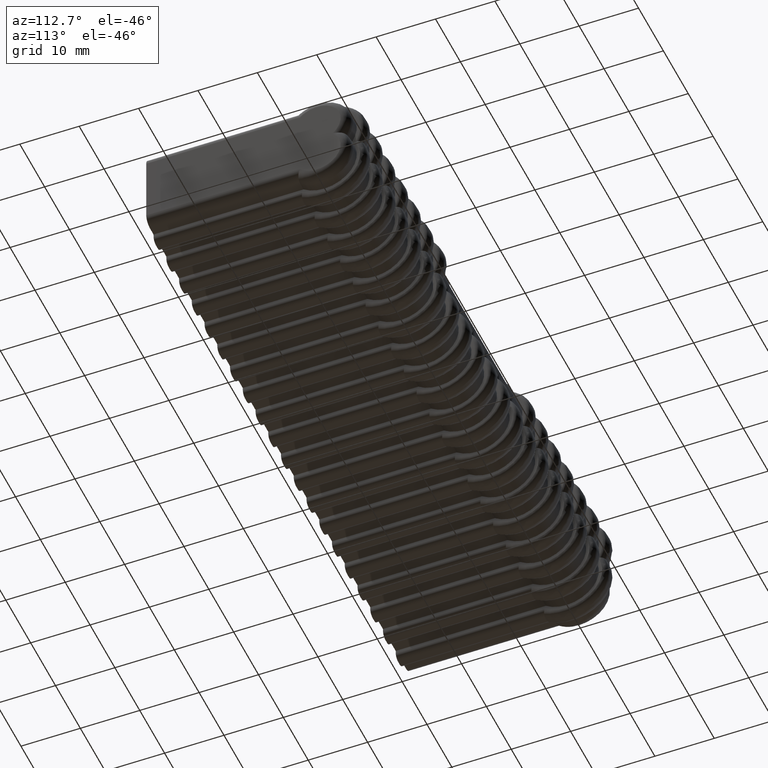
[diagram: clean part render]
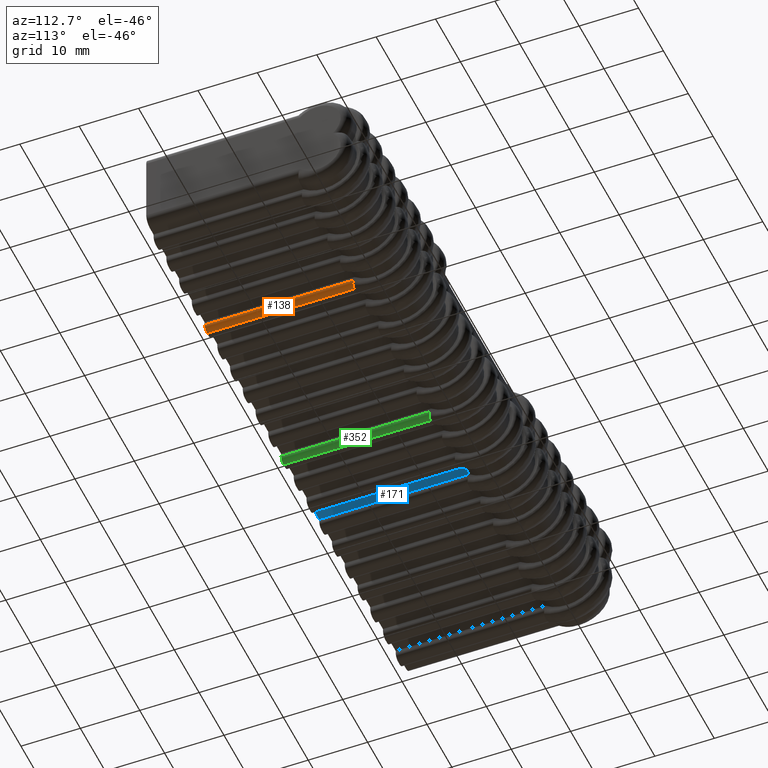
[diagram: same view with three faces highlighted in distinct colors, each labeled with its STEP entity id]
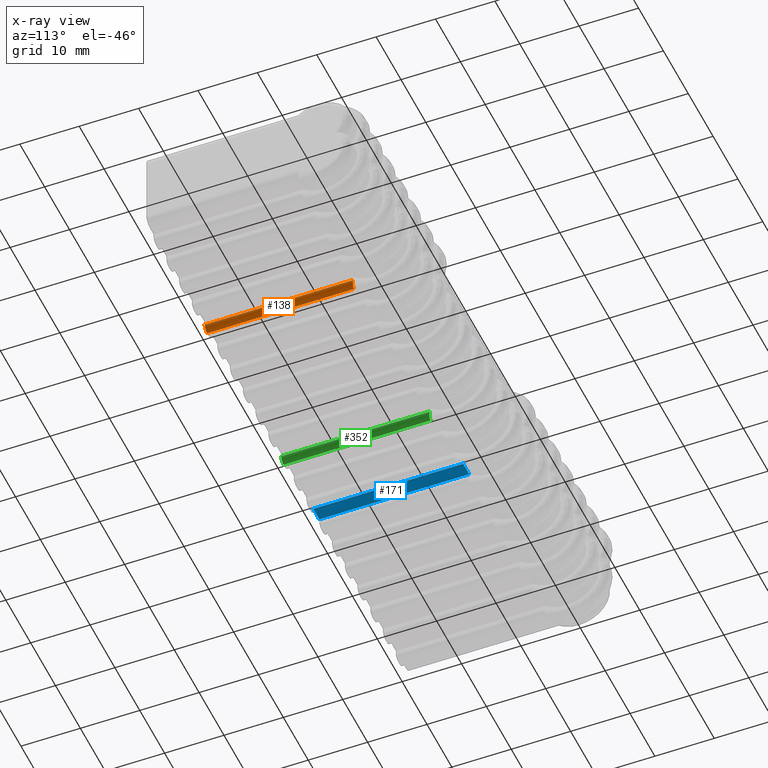
[diagram: x-ray of the same camera — body ghosted, the three highlighted faces saturated]
A machine part, auxiliary view with three faces highlighted in distinct colors.
The next image is the same camera in x-ray (body ghosted, the three faces saturated) — at least one of them is partly hidden behind the body in this view.
Their STEP definitions:

[orange] entity #138 — the highlighted cylindrical surface (edge-blend (fillet) strip) has radius 1 mm, axis along (0, 1, -0).
#138 = ADVANCED_FACE( '', ( #747 ), #748, .T. );
#747 = FACE_OUTER_BOUND( '', #1852, .T. );
#748 = CYLINDRICAL_SURFACE( '', #1853, 1.00000000000000 );
#1852 = EDGE_LOOP( '', ( #3334, #3335, #3336, #3337, #3338 ) );
#1853 = AXIS2_PLACEMENT_3D( '', #3339, #3340, #3341 );
#3334 = ORIENTED_EDGE( '', *, *, #7706, .F. );
#3335 = ORIENTED_EDGE( '', *, *, #7707, .T. );
#3336 = ORIENTED_EDGE( '', *, *, #7708, .T. );
#3337 = ORIENTED_EDGE( '', *, *, #7709, .T. );
#3338 = ORIENTED_EDGE( '', *, *, #7710, .F. );
#3339 = CARTESIAN_POINT( '', ( 28.5160354332851, 28.7300000000000, -7.74999999999999 ) );
#3340 = DIRECTION( '', ( 5.47382212626881E-048, 1.00000000000000, -1.83690953073357E-016 ) );
#3341 = DIRECTION( '', ( -1.22460635382238E-016, 1.83690953073357E-016, 1.00000000000000 ) );
#7706 = EDGE_CURVE( '', #9343, #9344, #9345, .T. );
#7707 = EDGE_CURVE( '', #9343, #9346, #9347, .T. );
#7708 = EDGE_CURVE( '', #9346, #9348, #9349, .T. );
#7709 = EDGE_CURVE( '', #9348, #9350, #9351, .T. );
#7710 = EDGE_CURVE( '', #9344, #9350, #9352, .T. );
#9343 = VERTEX_POINT( '', #12355 );
#9344 = VERTEX_POINT( '', #12356 );
#9345 = LINE( '', #12357, #12358 );
#9346 = VERTEX_POINT( '', #12359 );
#9347 = B_SPLINE_CURVE_WITH_KNOTS( '', 3, ( #12360, #12361, #12362, #12363 ), .UNSPECIFIED., .F., .F., ( 4, 4 ), ( 0.000000000000000, 5.00004884424651E-006 ), .UNSPECIFIED. );
#9348 = VERTEX_POINT( '', #12364 );
#9349 = B_SPLINE_CURVE_WITH_KNOTS( '', 3, ( #12365, #12366, #12367, #12368, #12369, #12370, #12371, #12372, #12373, #12374, #12375, #12376, #12377, #12378 ), .UNSPECIFIED., .F., .F., ( 4, 2, 2, 2, 2, 2, 4 ), ( 1.97119879776697E-007, 0.000382326565513297, 0.000764456011146818, 0.00114658545678034, 0.00133765017959710, 0.00143318254100548, 0.00152871490241385 ), .UNSPECIFIED. );
#9350 = VERTEX_POINT( '', #12379 );
#9351 = LINE( '', #12380, #12381 );
#9352 = CIRCLE( '', #12382, 1.00000000000000 );
#12355 = CARTESIAN_POINT( '', ( 28.5160354332851, 24.7680576142451, -8.74999999999999 ) );
#12356 = CARTESIAN_POINT( '', ( 28.5160354332851, -3.46944695195361E-015, -8.74999999999998 ) );
#12357 = CARTESIAN_POINT( '', ( 28.5160354332851, 28.7300000000000, -8.74999999999999 ) );
#12358 = VECTOR( '', #17756, 1000.00000000000 );
#12359 = CARTESIAN_POINT( '', ( 28.5210354332851, 24.7680393880839, -8.74998749992186 ) );
#12360 = CARTESIAN_POINT( '', ( 28.5160354332851, 24.7680576142451, -8.74999999999999 ) );
#12361 = CARTESIAN_POINT( '', ( 28.5177021162332, 24.7680576142451, -8.74999999999999 ) );
#12362 = CARTESIAN_POINT( '', ( 28.5193688154604, 24.7680515385368, -8.74999583311516 ) );
#12363 = CARTESIAN_POINT( '', ( 28.5210354332851, 24.7680393880839, -8.74998749992186 ) );
#12364 = CARTESIAN_POINT( '', ( 29.5146649680397, 24.9744503550466, -7.80233595624294 ) );
#12365 = CARTESIAN_POINT( '', ( 28.5210354332851, 24.7680393880839, -8.74998749992186 ) );
#12366 = CARTESIAN_POINT( '', ( 28.6502706555740, 24.7670972005867, -8.74934131573307 ) );
#12367 = CARTESIAN_POINT( '', ( 28.7769668455164, 24.7738997672032, -8.72373074994700 ) );
#12368 = CARTESIAN_POINT( '', ( 29.0128166028138, 24.8014183849335, -8.62718028071947 ) );
#12369 = CARTESIAN_POINT( '', ( 29.1205445157543, 24.8221578836521, -8.55635311089889 ) );
#12370 = CARTESIAN_POINT( '', ( 29.3004888082527, 24.8731686583458, -8.38266853307713 ) );
#12371 = CARTESIAN_POINT( '', ( 29.3738033681787, 24.9041955233257, -8.27869228016664 ) );
#12372 = CARTESIAN_POINT( '', ( 29.4509956326883, 24.9505084225083, -8.11009688257714 ) );
#12373 = CARTESIAN_POINT( '', ( 29.4716235511464, 24.9663554084897, -8.05144099493044 ) );
#12374 = CARTESIAN_POINT( '', ( 29.4944284185551, 24.9847834273757, -7.95916739105316 ) );
#12375 = CARTESIAN_POINT( '', ( 29.5006299180596, 24.9900981535437, -7.92779949479178 ) );
#12376 = CARTESIAN_POINT( '', ( 29.5100362235337, 24.9928484194723, -7.86402363255856 ) );
#12377 = CARTESIAN_POINT( '', ( 29.5131598647860, 24.9897605692524, -7.83105503715618 ) );
#12378 = CARTESIAN_POINT( '', ( 29.5146649680397, 24.9744503550479, -7.80233595624249 ) );
#12379 = CARTESIAN_POINT( '', ( 29.5146649680397, -3.46944695195361E-015, -7.80233595624293 ) );
#12380 = CARTESIAN_POINT( '', ( 29.5146649680397, 28.7300000000000, -7.80233595624294 ) );
#12381 = VECTOR( '', #17757, 1000.00000000000 );
#12382 = AXIS2_PLACEMENT_3D( '', #17758, #17759, #17760 );
#17756 = DIRECTION( '', ( 0.000000000000000, -1.00000000000000, 1.83690953073357E-016 ) );
#17757 = DIRECTION( '', ( 0.000000000000000, -1.00000000000000, 1.83690953073357E-016 ) );
#17758 = CARTESIAN_POINT( '', ( 28.5160354332851, -3.46944695195361E-015, -7.74999999999998 ) );
#17759 = DIRECTION( '', ( -5.47382212626881E-048, -1.00000000000000, 1.83690953073357E-016 ) );
#17760 = DIRECTION( '', ( 1.22460635382238E-016, -1.83690953073357E-016, -1.00000000000000 ) );

[blue] entity #171 — the highlighted planar face has unit normal (0, -0, -1).
#171 = ADVANCED_FACE( '', ( #813 ), #814, .T. );
#813 = FACE_OUTER_BOUND( '', #1918, .T. );
#814 = PLANE( '', #1919 );
#1918 = EDGE_LOOP( '', ( #3596, #3597, #3598, #3599, #3600 ) );
#1919 = AXIS2_PLACEMENT_3D( '', #3601, #3602, #3603 );
#3596 = ORIENTED_EDGE( '', *, *, #7860, .F. );
#3597 = ORIENTED_EDGE( '', *, *, #7861, .T. );
#3598 = ORIENTED_EDGE( '', *, *, #7862, .F. );
#3599 = ORIENTED_EDGE( '', *, *, #7863, .T. );
#3600 = ORIENTED_EDGE( '', *, *, #7864, .T. );
#3601 = CARTESIAN_POINT( '', ( 53.0000000000000, -3.46944695195361E-015, -7.24999999999998 ) );
#3602 = DIRECTION( '', ( 1.22460635382238E-016, -1.83690953073357E-016, -1.00000000000000 ) );
#3603 = DIRECTION( '', ( 1.00000000000000, 2.24949108273321E-032, 1.22460635382238E-016 ) );
#7860 = EDGE_CURVE( '', #9632, #9633, #9634, .T. );
#7861 = EDGE_CURVE( '', #9632, #9635, #9636, .T. );
#7862 = EDGE_CURVE( '', #9637, #9635, #9638, .T. );
#7863 = EDGE_CURVE( '', #9637, #9639, #9640, .T. );
#7864 = EDGE_CURVE( '', #9639, #9633, #9641, .T. );
#9632 = VERTEX_POINT( '', #13023 );
#9633 = VERTEX_POINT( '', #13024 );
#9634 = LINE( '', #13025, #13026 );
#9635 = VERTEX_POINT( '', #13027 );
#9636 = B_SPLINE_CURVE_WITH_KNOTS( '', 3, ( #13028, #13029, #13030, #13031 ), .UNSPECIFIED., .F., .F., ( 4, 4 ), ( 0.00330262157065524, 0.00345230614790573 ), .UNSPECIFIED. );
#9637 = VERTEX_POINT( '', #13032 );
#9638 = LINE( '', #13033, #13034 );
#9639 = VERTEX_POINT( '', #13035 );
#9640 = LINE( '', #13036, #13037 );
#9641 = LINE( '', #13038, #13039 );
#13023 = CARTESIAN_POINT( '', ( -16.6263883310754, 25.1144786972615, -7.25000000000000 ) );
#13024 = CARTESIAN_POINT( '', ( -16.6263883310754, -3.46944695195361E-015, -7.24999999999999 ) );
#13025 = CARTESIAN_POINT( '', ( -16.6263883310754, 28.7300000000000, -7.25000000000000 ) );
#13026 = VECTOR( '', #17960, 1000.00000000000 );
#13027 = CARTESIAN_POINT( '', ( -16.6213883310754, 25.2640810616776, -7.25000000000001 ) );
#13028 = CARTESIAN_POINT( '', ( -16.6263883310754, 25.1144786972615, -7.25000000000000 ) );
#13029 = CARTESIAN_POINT( '', ( -16.6247009513213, 25.1643456992722, -7.25000000000000 ) );
#13030 = CARTESIAN_POINT( '', ( -16.6230339249693, 25.2142131462148, -7.25000000000000 ) );
#13031 = CARTESIAN_POINT( '', ( -16.6213883310754, 25.2640810616776, -7.25000000000000 ) );
#13032 = CARTESIAN_POINT( '', ( -14.1536116689246, 25.2640810616776, -7.24999999999999 ) );
#13033 = CARTESIAN_POINT( '', ( 100.000000000000, 25.2640810616776, -7.24999999999999 ) );
#13034 = VECTOR( '', #17961, 1000.00000000000 );
#13035 = CARTESIAN_POINT( '', ( -14.1536116689246, -3.46944695195361E-015, -7.24999999999998 ) );
#13036 = CARTESIAN_POINT( '', ( -14.1536116689246, 28.7300000000000, -7.24999999999999 ) );
#13037 = VECTOR( '', #17962, 1000.00000000000 );
#13038 = CARTESIAN_POINT( '', ( 53.0000000000000, -3.46944695195361E-015, -7.24999999999998 ) );
#13039 = VECTOR( '', #17963, 1000.00000000000 );
#17960 = DIRECTION( '', ( 0.000000000000000, -1.00000000000000, 1.83690953073357E-016 ) );
#17961 = DIRECTION( '', ( -1.00000000000000, -3.31166777813623E-032, -1.80284751248131E-016 ) );
#17962 = DIRECTION( '', ( 0.000000000000000, -1.00000000000000, 1.83690953073357E-016 ) );
#17963 = DIRECTION( '', ( -1.00000000000000, -2.24949108273321E-032, -1.22460635382238E-016 ) );

[green] entity #352 — the highlighted cylindrical surface (edge-blend (fillet) strip) has radius 1 mm, axis along (0, 1, -0).
#352 = ADVANCED_FACE( '', ( #1184 ), #1185, .T. );
#1184 = FACE_OUTER_BOUND( '', #2289, .T. );
#1185 = CYLINDRICAL_SURFACE( '', #2290, 1.00000000000000 );
#2289 = EDGE_LOOP( '', ( #5349, #5350, #5351, #5352, #5353 ) );
#2290 = AXIS2_PLACEMENT_3D( '', #5354, #5355, #5356 );
#5349 = ORIENTED_EDGE( '', *, *, #8591, .F. );
#5350 = ORIENTED_EDGE( '', *, *, #8587, .T. );
#5351 = ORIENTED_EDGE( '', *, *, #8579, .T. );
#5352 = ORIENTED_EDGE( '', *, *, #8588, .T. );
#5353 = ORIENTED_EDGE( '', *, *, #8350, .F. );
#5354 = CARTESIAN_POINT( '', ( -2.26396456671487, 28.7300000000000, -7.74999999999999 ) );
#5355 = DIRECTION( '', ( 5.47382212626881E-048, 1.00000000000000, -1.83690953073357E-016 ) );
#5356 = DIRECTION( '', ( 1.22460635382238E-016, -1.83690953073357E-016, -1.00000000000000 ) );
#8350 = EDGE_CURVE( '', #10482, #10484, #10485, .T. );
#8579 = EDGE_CURVE( '', #10846, #10847, #10848, .T. );
#8587 = EDGE_CURVE( '', #10855, #10846, #10860, .T. );
#8588 = EDGE_CURVE( '', #10847, #10484, #10861, .T. );
#8591 = EDGE_CURVE( '', #10855, #10482, #10865, .T. );
#10482 = VERTEX_POINT( '', #14883 );
#10484 = VERTEX_POINT( '', #14886 );
#10485 = CIRCLE( '', #14887, 1.00000000000000 );
#10846 = VERTEX_POINT( '', #15841 );
#10847 = VERTEX_POINT( '', #15842 );
#10848 = B_SPLINE_CURVE_WITH_KNOTS( '', 3, ( #15843, #15844, #15845, #15846, #15847, #15848, #15849, #15850, #15851, #15852, #15853, #15854, #15855, #15856 ), .UNSPECIFIED., .F., .F., ( 4, 2, 2, 2, 2, 2, 4 ), ( 1.97119879778694E-007, 0.000382326565513152, 0.000764456011146526, 0.00114658545677990, 0.00133765017959659, 0.00143318254100494, 0.00152871490241329 ), .UNSPECIFIED. );
#10855 = VERTEX_POINT( '', #15871 );
#10860 = B_SPLINE_CURVE_WITH_KNOTS( '', 3, ( #15878, #15879, #15880, #15881 ), .UNSPECIFIED., .F., .F., ( 4, 4 ), ( 0.000000000000000, 5.00004884424608E-006 ), .UNSPECIFIED. );
#10861 = LINE( '', #15882, #15883 );
#10865 = LINE( '', #15891, #15892 );
#14883 = CARTESIAN_POINT( '', ( -2.26396456671488, -3.46944695195361E-015, -8.74999999999998 ) );
#14886 = CARTESIAN_POINT( '', ( -1.26533503196030, -3.46944695195361E-015, -7.80233595624293 ) );
#14887 = AXIS2_PLACEMENT_3D( '', #18529, #18530, #18531 );
#15841 = CARTESIAN_POINT( '', ( -2.25896456671488, 24.7680393880839, -8.74998749992187 ) );
#15842 = CARTESIAN_POINT( '', ( -1.26533503196030, 24.9744503550483, -7.80233595624302 ) );
#15843 = CARTESIAN_POINT( '', ( -2.25896456671488, 24.7680393880839, -8.74998749992187 ) );
#15844 = CARTESIAN_POINT( '', ( -2.12972934442601, 24.7670972005867, -8.74934131573307 ) );
#15845 = CARTESIAN_POINT( '', ( -2.00303315448375, 24.7738997672032, -8.72373074994702 ) );
#15846 = CARTESIAN_POINT( '', ( -1.76718339718640, 24.8014183849335, -8.62718028071956 ) );
#15847 = CARTESIAN_POINT( '', ( -1.65945548424590, 24.8221578836520, -8.55635311089904 ) );
#15848 = CARTESIAN_POINT( '', ( -1.47951119174748, 24.8731686583457, -8.38266853307739 ) );
#15849 = CARTESIAN_POINT( '', ( -1.40619663182154, 24.9041955233256, -8.27869228016696 ) );
#15850 = CARTESIAN_POINT( '', ( -1.32900436731184, 24.9505084225082, -8.11009688257755 ) );
#15851 = CARTESIAN_POINT( '', ( -1.30837644885378, 24.9663554084896, -8.05144099493090 ) );
#15852 = CARTESIAN_POINT( '', ( -1.28557158144497, 24.9847834273757, -7.95916739105367 ) );
#15853 = CARTESIAN_POINT( '', ( -1.27937008194048, 24.9900981535436, -7.92779949479231 ) );
#15854 = CARTESIAN_POINT( '', ( -1.26996377646640, 24.9928484194724, -7.86402363255913 ) );
#15855 = CARTESIAN_POINT( '', ( -1.26684013521405, 24.9897605692526, -7.83105503715676 ) );
#15856 = CARTESIAN_POINT( '', ( -1.26533503196030, 24.9744503550482, -7.80233595624303 ) );
#15871 = CARTESIAN_POINT( '', ( -2.26396456671488, 24.7680576142451, -8.74999999999999 ) );
#15878 = CARTESIAN_POINT( '', ( -2.26396456671488, 24.7680576142451, -8.74999999999999 ) );
#15879 = CARTESIAN_POINT( '', ( -2.26229788376680, 24.7680576142451, -8.74999999999999 ) );
#15880 = CARTESIAN_POINT( '', ( -2.26063118453964, 24.7680515385368, -8.74999583311516 ) );
#15881 = CARTESIAN_POINT( '', ( -2.25896456671488, 24.7680393880839, -8.74998749992187 ) );
#15882 = CARTESIAN_POINT( '', ( -1.26533503196030, 28.7300000000000, -7.80233595624294 ) );
#15883 = VECTOR( '', #18795, 1000.00000000000 );
#15891 = CARTESIAN_POINT( '', ( -2.26396456671488, 28.7300000000000, -8.74999999999999 ) );
#15892 = VECTOR( '', #18797, 1000.00000000000 );
#18529 = CARTESIAN_POINT( '', ( -2.26396456671487, -3.46944695195361E-015, -7.74999999999998 ) );
#18530 = DIRECTION( '', ( 0.000000000000000, -1.00000000000000, 1.83690953073357E-016 ) );
#18531 = DIRECTION( '', ( 5.56141504376439E-016, -1.83690953073357E-016, -1.00000000000000 ) );
#18795 = DIRECTION( '', ( 0.000000000000000, -1.00000000000000, 1.83690953073357E-016 ) );
#18797 = DIRECTION( '', ( 0.000000000000000, -1.00000000000000, 1.83690953073357E-016 ) );